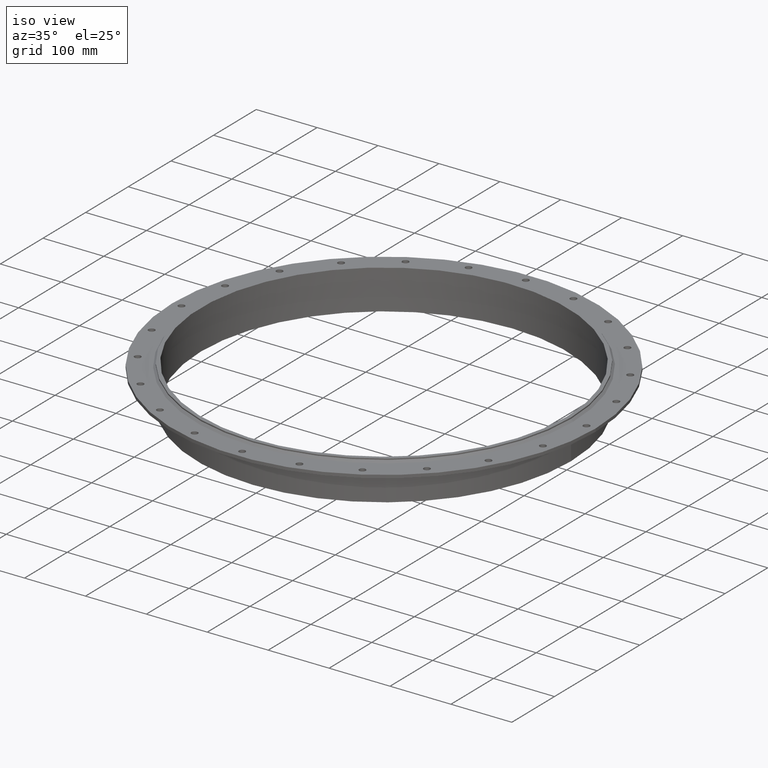
[diagram: clean part render]
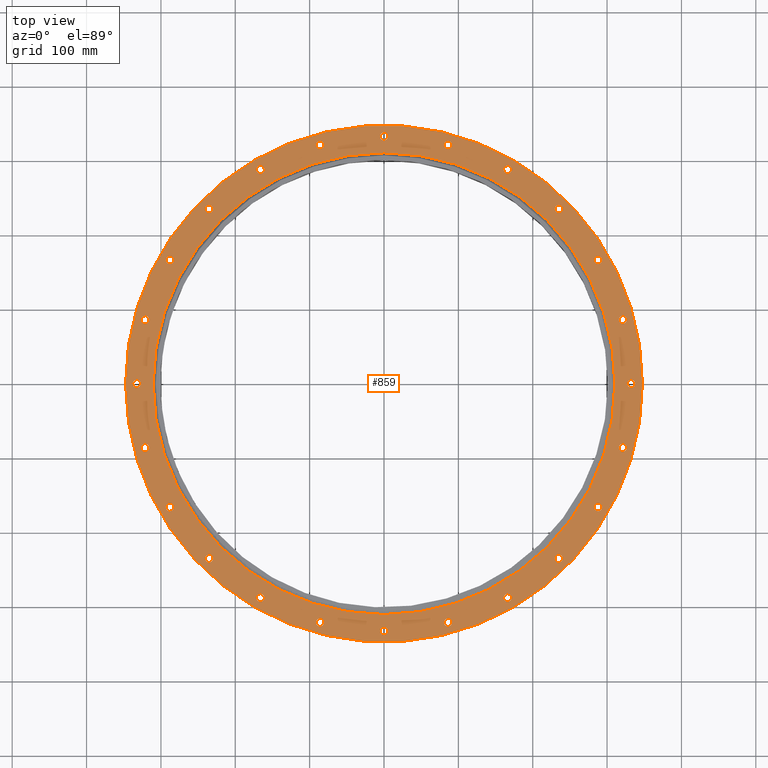
[diagram: tour spotlight — one face highlighted and labeled with its STEP entity id]
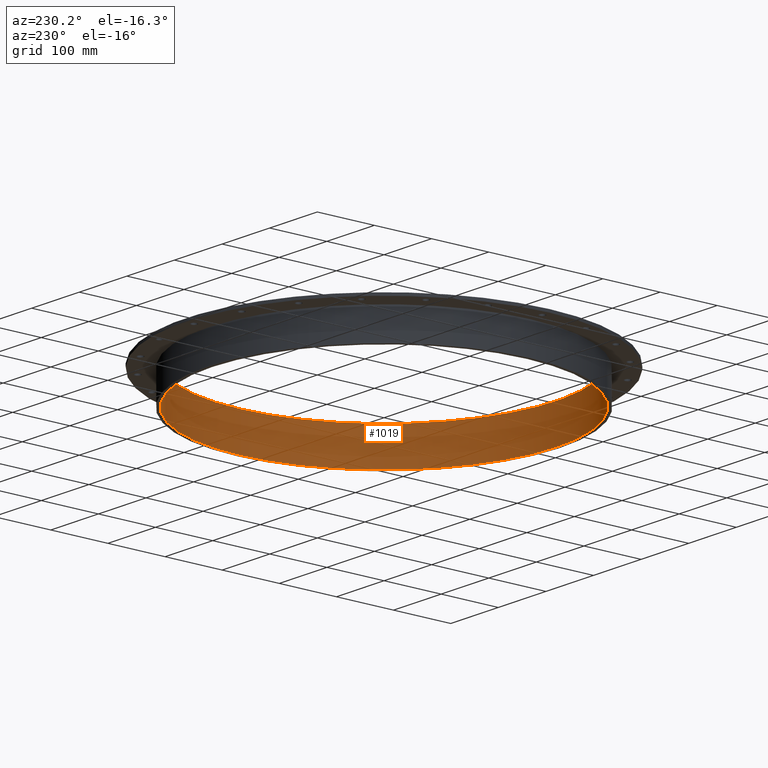
[diagram: tour spotlight — one face highlighted and labeled with its STEP entity id]
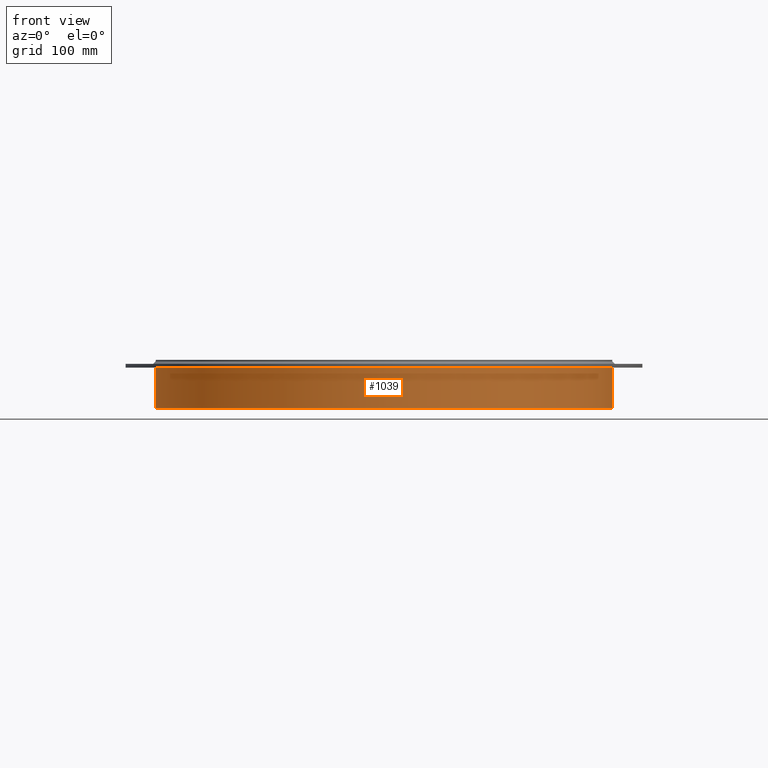
[diagram: tour spotlight — one face highlighted and labeled with its STEP entity id]
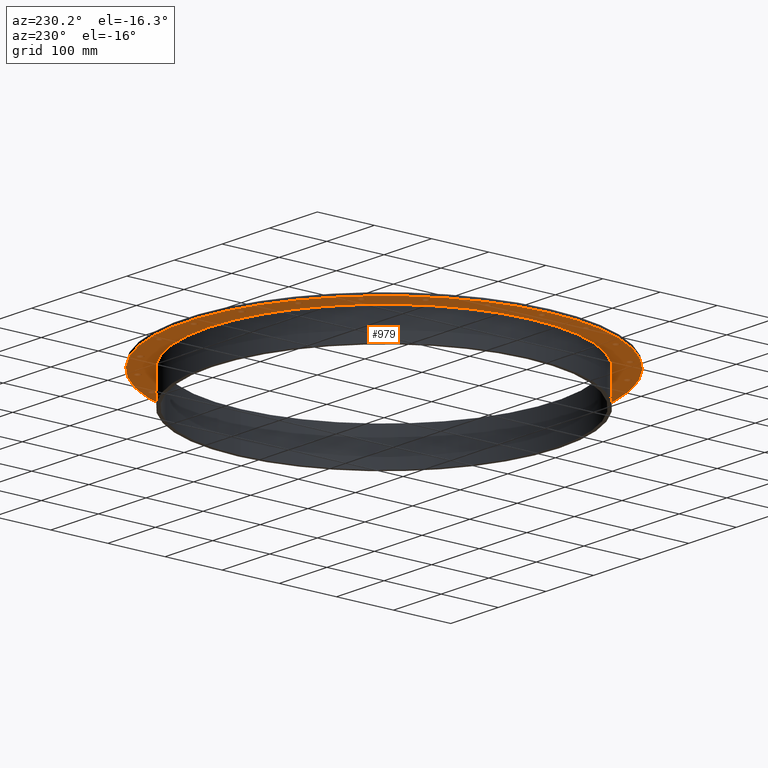
[diagram: tour spotlight — one face highlighted and labeled with its STEP entity id]
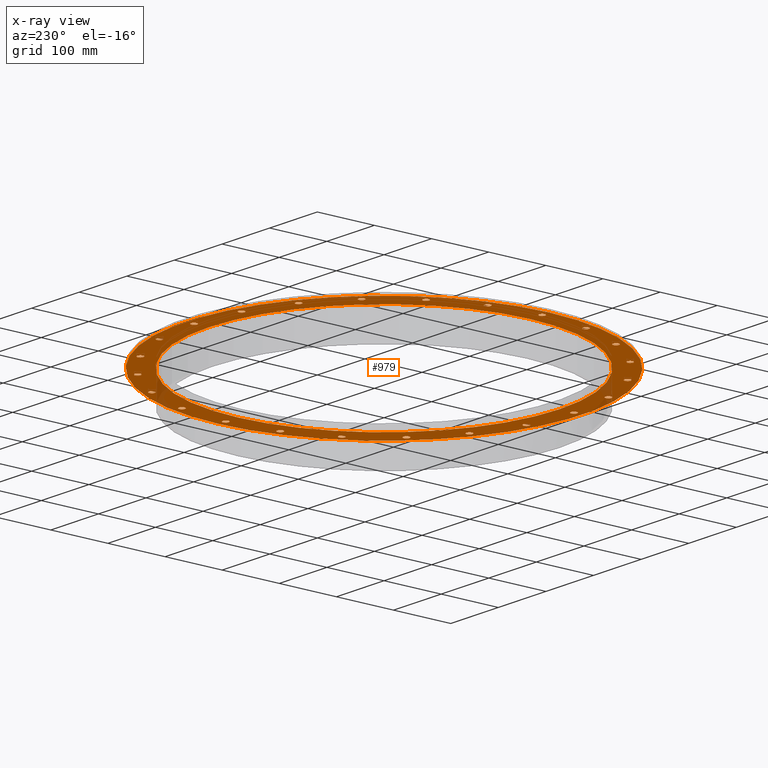
[diagram: x-ray of the same camera — body ghosted, this tour face saturated]
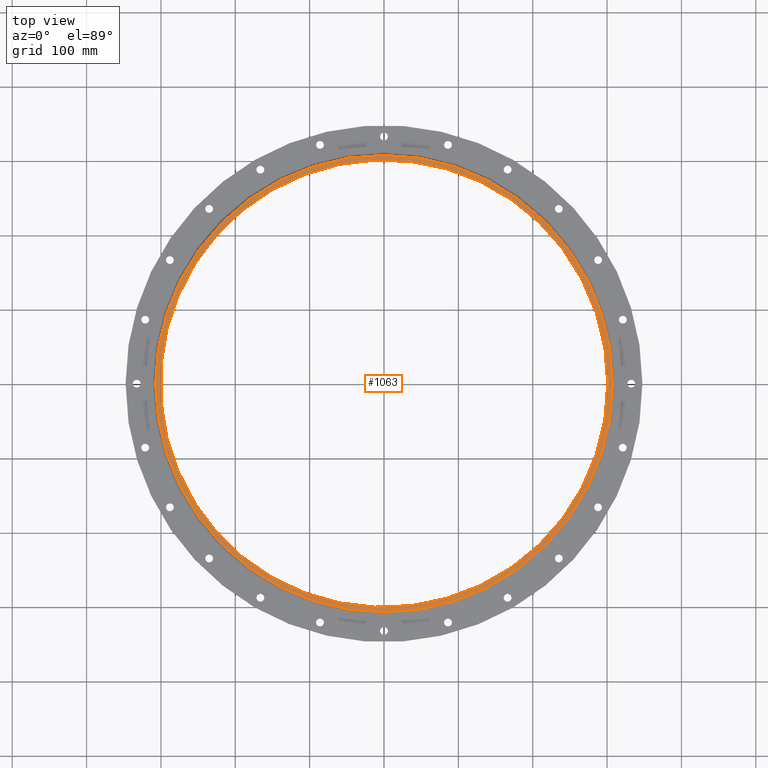
[diagram: tour spotlight — one face highlighted and labeled with its STEP entity id]
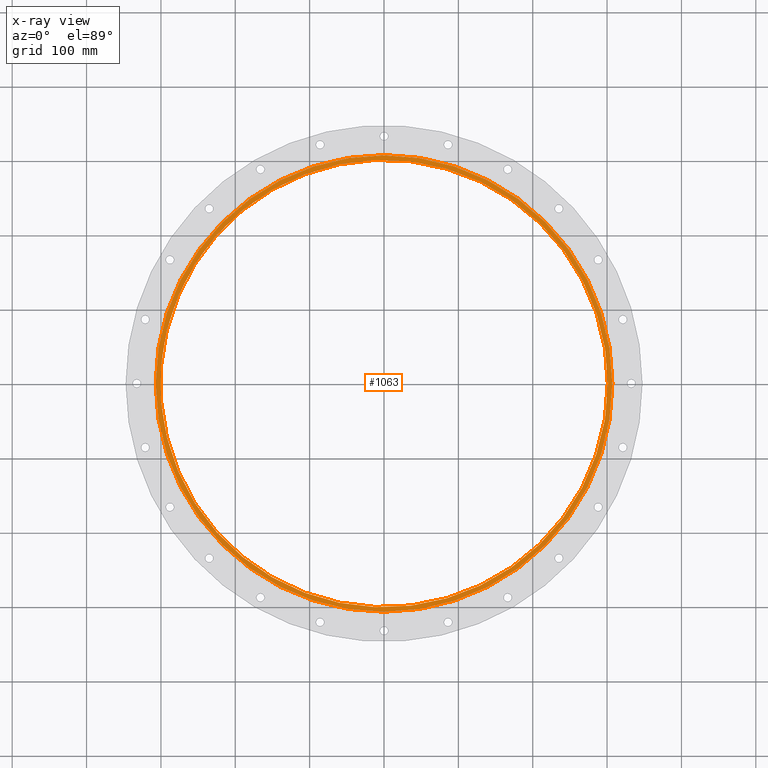
[diagram: x-ray of the same camera — body ghosted, this tour face saturated]
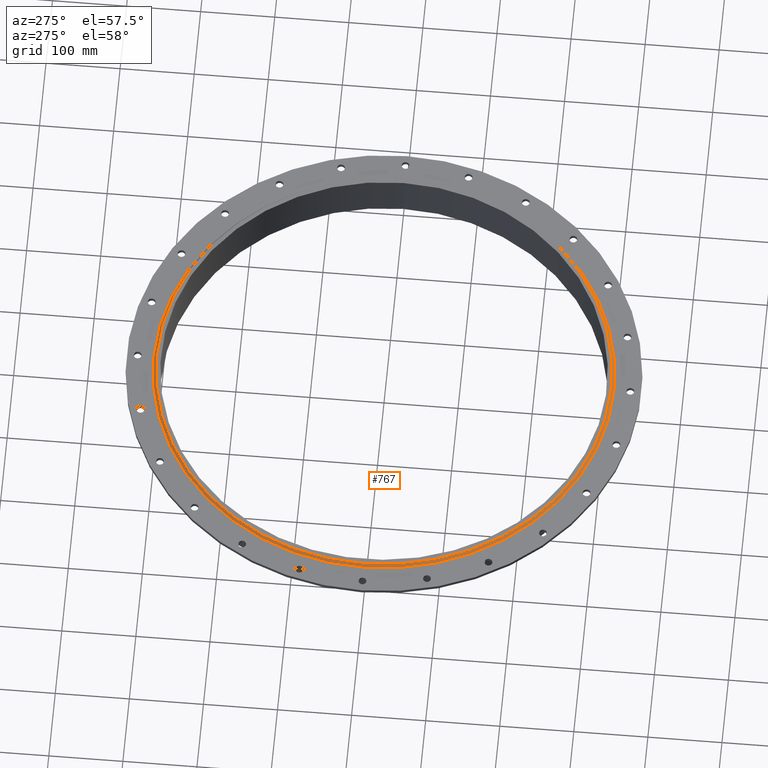
[diagram: tour spotlight — one face highlighted and labeled with its STEP entity id]
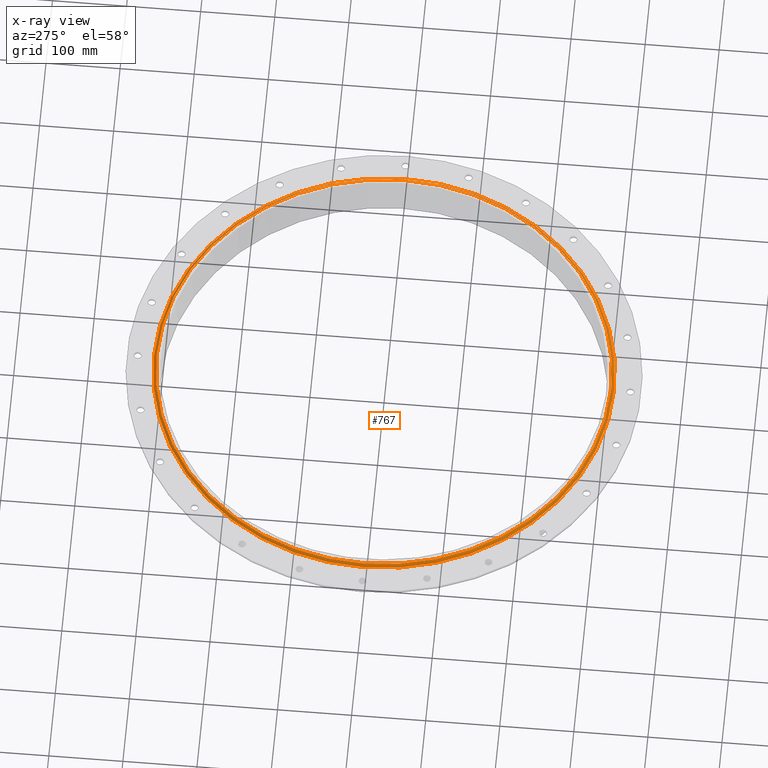
[diagram: x-ray of the same camera — body ghosted, this tour face saturated]
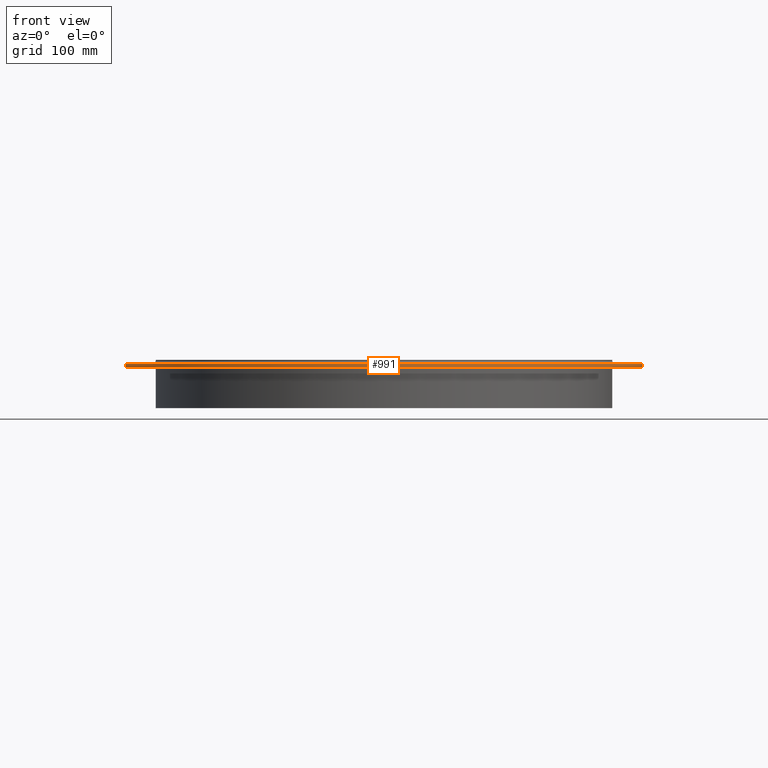
[diagram: tour spotlight — one face highlighted and labeled with its STEP entity id]
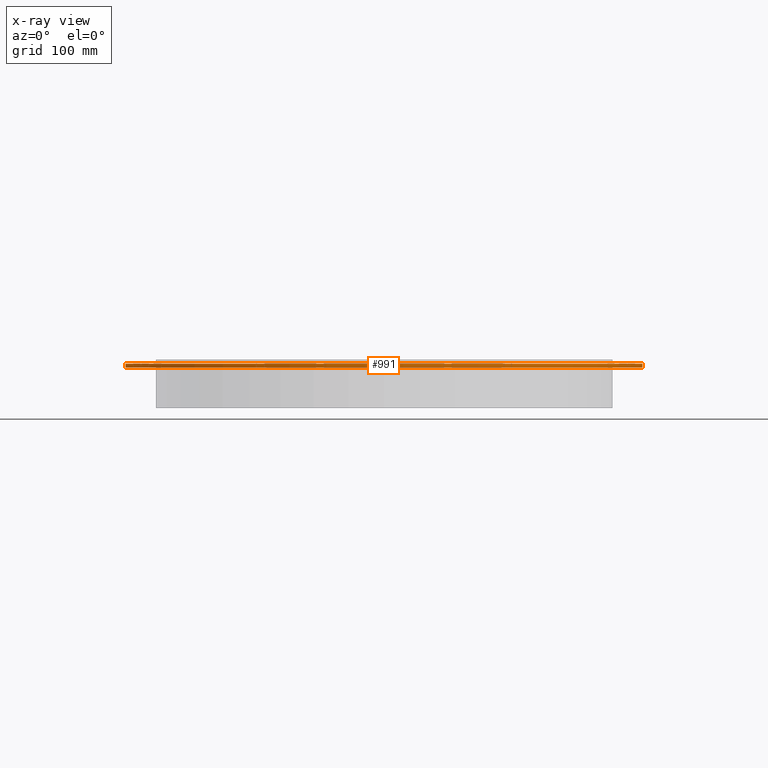
[diagram: x-ray of the same camera — body ghosted, this tour face saturated]
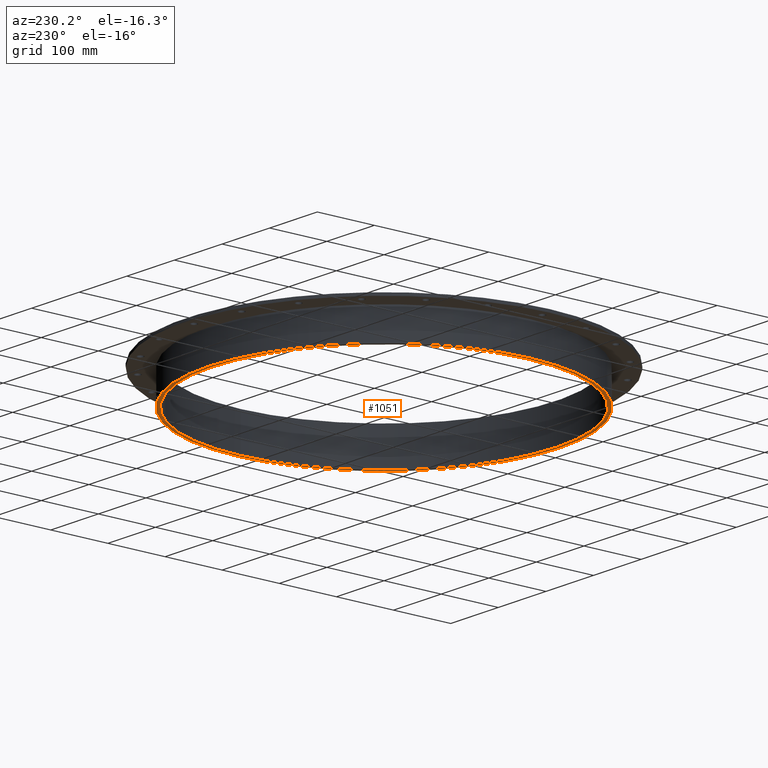
[diagram: tour spotlight — one face highlighted and labeled with its STEP entity id]
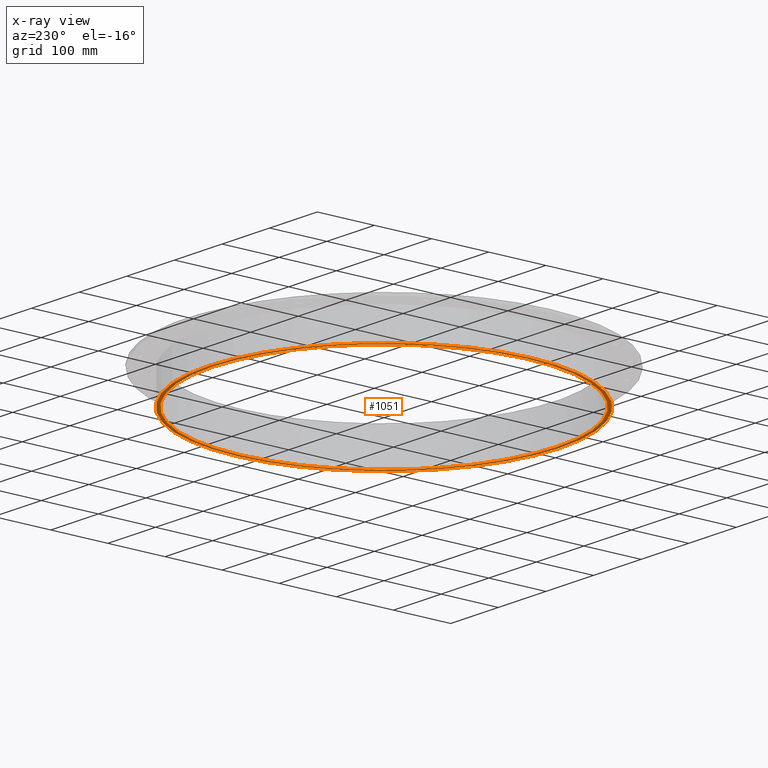
[diagram: x-ray of the same camera — body ghosted, this tour face saturated]
A machine part: a face-by-face anatomy tour. The part has 33 B-rep faces; the first image is the clean iso view, then the 8 largest visible faces are spotlighted one at a time (largest first), each with its STEP entity span.

Face 1 — top view, entity #859. In plain terms, the highlighted planar face has unit normal (0, 0, 1).
Definition (entity closure, byte-faithful):
#84=CARTESIAN_POINT('',(-161.0,287.95344675832587,-5.499999999999998));
#85=VERTEX_POINT('',#84);
#86=CARTESIAN_POINT('',(-166.25,287.95344675832587,-5.499999999999972));
#87=DIRECTION('',(0.0,0.0,-1.0));
#88=DIRECTION('',(1.0,0.0,0.0));
#89=AXIS2_PLACEMENT_3D('',#86,#87,#88);
#90=CIRCLE('',#89,5.25);
#91=EDGE_CURVE('',#85,#85,#90,.T.);
#112=CARTESIAN_POINT('',(-282.70344675832587,166.25000000000006,-5.499999999999998));
#113=VERTEX_POINT('',#112);
#114=CARTESIAN_POINT('',(-287.95344675832587,166.25000000000006,-5.499999999999972));
#115=DIRECTION('',(0.0,0.0,-1.0));
#116=DIRECTION('',(1.0,0.0,0.0));
#117=AXIS2_PLACEMENT_3D('',#114,#115,#116);
#118=CIRCLE('',#117,5.25);
#119=EDGE_CURVE('',#113,#113,#118,.T.);
#140=CARTESIAN_POINT('',(-327.25,1.776357E-014,-5.499999999999998));
#141=VERTEX_POINT('',#140);
#142=CARTESIAN_POINT('',(-332.5,1.776357E-014,-5.499999999999972));
#143=DIRECTION('',(0.0,0.0,-1.0));
#144=DIRECTION('',(1.0,0.0,0.0));
#145=AXIS2_PLACEMENT_3D('',#142,#143,#144);
#146=CIRCLE('',#145,5.25);
#147=EDGE_CURVE('',#141,#141,#146,.T.);
#168=CARTESIAN_POINT('',(-282.70344675832587,-166.24999999999997,-5.499999999999998));
#169=VERTEX_POINT('',#168);
#170=CARTESIAN_POINT('',(-287.95344675832587,-166.24999999999997,-5.499999999999972));
#171=DIRECTION('',(0.0,0.0,-1.0));
#172=DIRECTION('',(1.0,0.0,0.0));
#173=AXIS2_PLACEMENT_3D('',#170,#171,#172);
#174=CIRCLE('',#173,5.25);
#175=EDGE_CURVE('',#169,#169,#174,.T.);
#196=CARTESIAN_POINT('',(-161.00000000000011,-287.95344675832575,-5.499999999999998));
#197=VERTEX_POINT('',#196);
#198=CARTESIAN_POINT('',(-166.25000000000011,-287.95344675832575,-5.499999999999972));
#199=DIRECTION('',(0.0,0.0,-1.0));
#200=DIRECTION('',(1.0,0.0,0.0));
#201=AXIS2_PLACEMENT_3D('',#198,#199,#200);
#202=CIRCLE('',#201,5.25);
#203=EDGE_CURVE('',#197,#197,#202,.T.);
#224=CARTESIAN_POINT('',(5.249999999999965,-332.5,-5.499999999999998));
#225=VERTEX_POINT('',#224);
#226=CARTESIAN_POINT('',(-3.552714E-014,-332.5,-5.499999999999972));
#227=DIRECTION('',(0.0,0.0,-1.0));
#228=DIRECTION('',(1.0,0.0,0.0));
#229=AXIS2_PLACEMENT_3D('',#226,#227,#228);
#230=CIRCLE('',#229,5.25);
#231=EDGE_CURVE('',#225,#225,#230,.T.);
#252=CARTESIAN_POINT('',(171.49999999999989,-287.95344675832587,-5.499999999999998));
#253=VERTEX_POINT('',#252);
#254=CARTESIAN_POINT('',(166.24999999999989,-287.95344675832587,-5.499999999999972));
#255=DIRECTION('',(0.0,0.0,-1.0));
#256=DIRECTION('',(1.0,0.0,0.0));
#257=AXIS2_PLACEMENT_3D('',#254,#255,#256);
#258=CIRCLE('',#257,5.25);
#259=EDGE_CURVE('',#253,#253,#258,.T.);
#280=CARTESIAN_POINT('',(293.20344675832575,-166.25000000000014,-5.499999999999998));
#281=VERTEX_POINT('',#280);
#282=CARTESIAN_POINT('',(287.95344675832575,-166.25000000000014,-5.499999999999972));
#283=DIRECTION('',(0.0,0.0,-1.0));
#284=DIRECTION('',(1.0,0.0,0.0));
#285=AXIS2_PLACEMENT_3D('',#282,#283,#284);
#286=CIRCLE('',#285,5.25);
#287=EDGE_CURVE('',#281,#281,#286,.T.);
#308=CARTESIAN_POINT('',(337.75,-5.329071E-014,-5.499999999999998));
#309=VERTEX_POINT('',#308);
#310=CARTESIAN_POINT('',(332.5,-5.329071E-014,-5.499999999999972));
#311=DIRECTION('',(0.0,0.0,-1.0));
#312=DIRECTION('',(1.0,0.0,0.0));
#313=AXIS2_PLACEMENT_3D('',#310,#311,#312);
#314=CIRCLE('',#313,5.25);
#315=EDGE_CURVE('',#309,#309,#314,.T.);
#336=CARTESIAN_POINT('',(293.20344675832604,166.24999999999974,-5.499999999999998));
#337=VERTEX_POINT('',#336);
#338=CARTESIAN_POINT('',(287.95344675832604,166.24999999999974,-5.499999999999972));
#339=DIRECTION('',(0.0,0.0,-1.0));
#340=DIRECTION('',(1.0,0.0,0.0));
#341=AXIS2_PLACEMENT_3D('',#338,#339,#340);
#342=CIRCLE('',#341,5.25);
#343=EDGE_CURVE('',#337,#337,#342,.T.);
#364=CARTESIAN_POINT('',(171.50000000000011,287.95344675832575,-5.499999999999998));
#365=VERTEX_POINT('',#364);
#366=CARTESIAN_POINT('',(166.25000000000014,287.95344675832575,-5.499999999999972));
#367=DIRECTION('',(0.0,0.0,-1.0));
#368=DIRECTION('',(1.0,0.0,0.0));
#369=AXIS2_PLACEMENT_3D('',#366,#367,#368);
#370=CIRCLE('',#369,5.25);
#371=EDGE_CURVE('',#365,#365,#370,.T.);
#392=CARTESIAN_POINT('',(5.25,332.5,-5.499999999999998));
#393=VERTEX_POINT('',#392);
#394=CARTESIAN_POINT('',(0.0,332.5,-5.499999999999972));
#395=DIRECTION('',(0.0,0.0,-1.0));
#396=DIRECTION('',(1.0,0.0,0.0));
#397=AXIS2_PLACEMENT_3D('',#394,#395,#396);
#398=CIRCLE('',#397,5.25);
#399=EDGE_CURVE('',#393,#393,#398,.T.);
#420=CARTESIAN_POINT('',(91.307332496588387,321.17033724111513,-5.499999999999998));
#421=VERTEX_POINT('',#420);
#422=CARTESIAN_POINT('',(86.057332496588387,321.17033724111513,-5.499999999999972));
#423=DIRECTION('',(0.0,0.0,-1.0));
#424=DIRECTION('',(1.0,0.0,0.0));
#425=AXIS2_PLACEMENT_3D('',#422,#423,#424);
#426=CIRCLE('',#425,5.25);
#427=EDGE_CURVE('',#421,#421,#426,.T.);
#448=CARTESIAN_POINT('',(240.36300474452719,235.11300474452702,-5.499999999999998));
#449=VERTEX_POINT('',#448);
#450=CARTESIAN_POINT('',(235.11300474452722,235.11300474452702,-5.499999999999972));
#451=DIRECTION('',(0.0,0.0,-1.0));
#452=DIRECTION('',(1.0,0.0,0.0));
#453=AXIS2_PLACEMENT_3D('',#450,#451,#452);
#454=CIRCLE('',#453,5.25);
#455=EDGE_CURVE('',#449,#449,#454,.T.);
#476=CARTESIAN_POINT('',(326.42033724111525,86.057332496588003,-5.499999999999998));
#477=VERTEX_POINT('',#476);
#478=CARTESIAN_POINT('',(321.17033724111531,86.057332496588003,-5.499999999999972));
#479=DIRECTION('',(0.0,0.0,-1.0));
#480=DIRECTION('',(1.0,0.0,0.0));
#481=AXIS2_PLACEMENT_3D('',#478,#479,#480);
#482=CIRCLE('',#481,5.25);
#483=EDGE_CURVE('',#477,#477,#482,.T.);
#504=CARTESIAN_POINT('',(326.42033724111525,-86.057332496588387,-5.499999999999998));
#505=VERTEX_POINT('',#504);
#506=CARTESIAN_POINT('',(321.17033724111531,-86.057332496588387,-5.499999999999972));
#507=DIRECTION('',(0.0,0.0,-1.0));
#508=DIRECTION('',(1.0,0.0,0.0));
#509=AXIS2_PLACEMENT_3D('',#506,#507,#508);
#510=CIRCLE('',#509,5.25);
#511=EDGE_CURVE('',#505,#505,#510,.T.);
#532=CARTESIAN_POINT('',(240.3630047445269,-235.11300474452722,-5.499999999999998));
#533=VERTEX_POINT('',#532);
#534=CARTESIAN_POINT('',(235.11300474452693,-235.11300474452722,-5.499999999999972));
#535=DIRECTION('',(0.0,0.0,-1.0));
#536=DIRECTION('',(1.0,0.0,0.0));
#537=AXIS2_PLACEMENT_3D('',#534,#535,#536);
#538=CIRCLE('',#537,5.25);
#539=EDGE_CURVE('',#533,#533,#538,.T.);
#560=CARTESIAN_POINT('',(91.307332496588032,-321.17033724111531,-5.499999999999998));
#561=VERTEX_POINT('',#560);
#562=CARTESIAN_POINT('',(86.057332496588032,-321.17033724111531,-5.499999999999972));
#563=DIRECTION('',(0.0,0.0,-1.0));
#564=DIRECTION('',(1.0,0.0,0.0));
#565=AXIS2_PLACEMENT_3D('',#562,#563,#564);
#566=CIRCLE('',#565,5.25);
#567=EDGE_CURVE('',#561,#561,#566,.T.);
#588=CARTESIAN_POINT('',(-80.807332496588231,-321.17033724111531,-5.499999999999998));
#589=VERTEX_POINT('',#588);
#590=CARTESIAN_POINT('',(-86.057332496588245,-321.17033724111531,-5.499999999999972));
#591=DIRECTION('',(0.0,0.0,-1.0));
#592=DIRECTION('',(1.0,0.0,0.0));
#593=AXIS2_PLACEMENT_3D('',#590,#591,#592);
#594=CIRCLE('',#593,5.25);
#595=EDGE_CURVE('',#589,#589,#594,.T.);
#616=CARTESIAN_POINT('',(-229.86300474452713,-235.11300474452707,-5.499999999999998));
#617=VERTEX_POINT('',#616);
#618=CARTESIAN_POINT('',(-235.1130047445271,-235.11300474452707,-5.499999999999972));
#619=DIRECTION('',(0.0,0.0,-1.0));
#620=DIRECTION('',(1.0,0.0,0.0));
#621=AXIS2_PLACEMENT_3D('',#618,#619,#620);
#622=CIRCLE('',#621,5.25);
#623=EDGE_CURVE('',#617,#617,#622,.T.);
#644=CARTESIAN_POINT('',(-315.92033724111531,-86.057332496588117,-5.499999999999998));
#645=VERTEX_POINT('',#644);
#646=CARTESIAN_POINT('',(-321.17033724111531,-86.057332496588117,-5.499999999999972));
#647=DIRECTION('',(0.0,0.0,-1.0));
#648=DIRECTION('',(1.0,0.0,0.0));
#649=AXIS2_PLACEMENT_3D('',#646,#647,#648);
#650=CIRCLE('',#649,5.25);
#651=EDGE_CURVE('',#645,#645,#650,.T.);
#672=CARTESIAN_POINT('',(-315.92033724111531,86.057332496588245,-5.499999999999998));
#673=VERTEX_POINT('',#672);
#674=CARTESIAN_POINT('',(-321.17033724111531,86.057332496588245,-5.499999999999972));
#675=DIRECTION('',(0.0,0.0,-1.0));
#676=DIRECTION('',(1.0,0.0,0.0));
#677=AXIS2_PLACEMENT_3D('',#674,#675,#676);
#678=CIRCLE('',#677,5.25);
#679=EDGE_CURVE('',#673,#673,#678,.T.);
#700=CARTESIAN_POINT('',(-229.86300474452707,235.1130047445271,-5.499999999999998));
#701=VERTEX_POINT('',#700);
#702=CARTESIAN_POINT('',(-235.11300474452707,235.1130047445271,-5.499999999999972));
#703=DIRECTION('',(0.0,0.0,-1.0));
#704=DIRECTION('',(1.0,0.0,0.0));
#705=AXIS2_PLACEMENT_3D('',#702,#703,#704);
#706=CIRCLE('',#705,5.25);
#707=EDGE_CURVE('',#701,#701,#706,.T.);
#728=CARTESIAN_POINT('',(-80.807332496588145,321.17033724111531,-5.499999999999998));
#729=VERTEX_POINT('',#728);
#730=CARTESIAN_POINT('',(-86.057332496588145,321.17033724111531,-5.499999999999972));
#731=DIRECTION('',(0.0,0.0,-1.0));
#732=DIRECTION('',(1.0,0.0,0.0));
#733=AXIS2_PLACEMENT_3D('',#730,#731,#732);
#734=CIRCLE('',#733,5.25);
#735=EDGE_CURVE('',#729,#729,#734,.T.);
#745=CARTESIAN_POINT('',(310.50000000000011,3.802528E-014,-5.499999999999998));
#746=VERTEX_POINT('',#745);
#747=CARTESIAN_POINT('',(0.0,0.0,-5.499999999999998));
#748=DIRECTION('',(0.0,0.0,1.0));
#749=DIRECTION('',(-1.0,0.0,0.0));
#750=AXIS2_PLACEMENT_3D('',#747,#748,#749);
#751=CIRCLE('',#750,310.50000000000011);
#752=EDGE_CURVE('',#746,#746,#751,.T.);
#768=CARTESIAN_POINT('',(-1.445159E-014,-5.452606E-015,-5.499999999999998));
#769=DIRECTION('',(0.0,0.0,1.0));
#770=DIRECTION('',(1.0,0.0,0.0));
#771=AXIS2_PLACEMENT_3D('',#768,#769,#770);
#772=PLANE('',#771);
#773=CARTESIAN_POINT('',(347.5,4.255648E-014,-5.5));
#774=VERTEX_POINT('',#773);
#775=CARTESIAN_POINT('',(0.0,0.0,-5.5));
#776=DIRECTION('',(0.0,0.0,1.0));
#777=DIRECTION('',(-1.0,0.0,0.0));
#778=AXIS2_PLACEMENT_3D('',#775,#776,#777);
#779=CIRCLE('',#778,347.5);
#780=EDGE_CURVE('',#774,#774,#779,.T.);
#781=ORIENTED_EDGE('',*,*,#780,.T.);
#782=EDGE_LOOP('',(#781));
#783=FACE_OUTER_BOUND('',#782,.T.);
#784=ORIENTED_EDGE('',*,*,#91,.T.);
#785=EDGE_LOOP('',(#784));
#786=FACE_BOUND('',#785,.T.);
#787=ORIENTED_EDGE('',*,*,#119,.T.);
#788=EDGE_LOOP('',(#787));
#789=FACE_BOUND('',#788,.T.);
#790=ORIENTED_EDGE('',*,*,#147,.T.);
#791=EDGE_LOOP('',(#790));
#792=FACE_BOUND('',#791,.T.);
#793=ORIENTED_EDGE('',*,*,#175,.T.);
#794=EDGE_LOOP('',(#793));
#795=FACE_BOUND('',#794,.T.);
#796=ORIENTED_EDGE('',*,*,#203,.T.);
#797=EDGE_LOOP('',(#796));
#798=FACE_BOUND('',#797,.T.);
#799=ORIENTED_EDGE('',*,*,#231,.T.);
#800=EDGE_LOOP('',(#799));
#801=FACE_BOUND('',#800,.T.);
#802=ORIENTED_EDGE('',*,*,#259,.T.);
#803=EDGE_LOOP('',(#802));
#804=FACE_BOUND('',#803,.T.);
#805=ORIENTED_EDGE('',*,*,#287,.T.);
#806=EDGE_LOOP('',(#805));
#807=FACE_BOUND('',#806,.T.);
#808=ORIENTED_EDGE('',*,*,#315,.T.);
#809=EDGE_LOOP('',(#808));
#810=FACE_BOUND('',#809,.T.);
#811=ORIENTED_EDGE('',*,*,#343,.T.);
#812=EDGE_LOOP('',(#811));
#813=FACE_BOUND('',#812,.T.);
#814=ORIENTED_EDGE('',*,*,#371,.T.);
#815=EDGE_LOOP('',(#814));
#816=FACE_BOUND('',#815,.T.);
#817=ORIENTED_EDGE('',*,*,#399,.T.);
#818=EDGE_LOOP('',(#817));
#819=FACE_BOUND('',#818,.T.);
#820=ORIENTED_EDGE('',*,*,#427,.T.);
#821=EDGE_LOOP('',(#820));
#822=FACE_BOUND('',#821,.T.);
#823=ORIENTED_EDGE('',*,*,#455,.T.);
#824=EDGE_LOOP('',(#823));
#825=FACE_BOUND('',#824,.T.);
#826=ORIENTED_EDGE('',*,*,#483,.T.);
#827=EDGE_LOOP('',(#826));
#828=FACE_BOUND('',#827,.T.);
#829=ORIENTED_EDGE('',*,*,#511,.T.);
#830=EDGE_LOOP('',(#829));
#831=FACE_BOUND('',#830,.T.);
#832=ORIENTED_EDGE('',*,*,#539,.T.);
#833=EDGE_LOOP('',(#832));
#834=FACE_BOUND('',#833,.T.);
#835=ORIENTED_EDGE('',*,*,#567,.T.);
#836=EDGE_LOOP('',(#835));
#837=FACE_BOUND('',#836,.T.);
#838=ORIENTED_EDGE('',*,*,#595,.T.);
#839=EDGE_LOOP('',(#838));
#840=FACE_BOUND('',#839,.T.);
#841=ORIENTED_EDGE('',*,*,#623,.T.);
#842=EDGE_LOOP('',(#841));
#843=FACE_BOUND('',#842,.T.);
#844=ORIENTED_EDGE('',*,*,#651,.T.);
#845=EDGE_LOOP('',(#844));
#846=FACE_BOUND('',#845,.T.);
#847=ORIENTED_EDGE('',*,*,#679,.T.);
#848=EDGE_LOOP('',(#847));
#849=FACE_BOUND('',#848,.T.);
#850=ORIENTED_EDGE('',*,*,#707,.T.);
#851=EDGE_LOOP('',(#850));
#852=FACE_BOUND('',#851,.T.);
#853=ORIENTED_EDGE('',*,*,#735,.T.);
#854=EDGE_LOOP('',(#853));
#855=FACE_BOUND('',#854,.T.);
#856=ORIENTED_EDGE('',*,*,#752,.F.);
#857=EDGE_LOOP('',(#856));
#858=FACE_BOUND('',#857,.T.);
#859=ADVANCED_FACE('',(#783,#786,#789,#792,#795,#798,#801,#804,#807,#810,#813,#816,#819,#822,#825,#828,#831,#834,#837,#840,#843,#846,#849,#852,#855,#858),#772,.T.);

Face 2 — auxiliary view, entity #1019. In plain terms, the highlighted cylindrical surface (bore or boss wall) has radius 301 mm, axis along (0, 0, 1).
Definition (entity closure, byte-faithful):
#992=CARTESIAN_POINT('',(0.0,0.0,-870.75656758935793));
#993=DIRECTION('',(0.0,0.0,1.0));
#994=DIRECTION('',(1.0,0.0,0.0));
#995=AXIS2_PLACEMENT_3D('',#992,#993,#994);
#996=CYLINDRICAL_SURFACE('',#995,301.0);
#997=CARTESIAN_POINT('',(-301.0,-3.686187E-014,-65.0));
#998=VERTEX_POINT('',#997);
#999=CARTESIAN_POINT('',(0.0,0.0,-65.0));
#1000=DIRECTION('',(0.0,0.0,1.0));
#1001=DIRECTION('',(1.0,0.0,0.0));
#1002=AXIS2_PLACEMENT_3D('',#999,#1000,#1001);
#1003=CIRCLE('',#1002,301.0);
#1004=EDGE_CURVE('',#998,#998,#1003,.T.);
#1005=ORIENTED_EDGE('',*,*,#1004,.F.);
#1006=EDGE_LOOP('',(#1005));
#1007=FACE_OUTER_BOUND('',#1006,.T.);
#1008=CARTESIAN_POINT('',(301.0,0.0,0.0));
#1009=VERTEX_POINT('',#1008);
#1010=CARTESIAN_POINT('',(0.0,0.0,0.0));
#1011=DIRECTION('',(0.0,0.0,-1.0));
#1012=DIRECTION('',(1.0,0.0,0.0));
#1013=AXIS2_PLACEMENT_3D('',#1010,#1011,#1012);
#1014=CIRCLE('',#1013,301.0);
#1015=EDGE_CURVE('',#1009,#1009,#1014,.T.);
#1016=ORIENTED_EDGE('',*,*,#1015,.F.);
#1017=EDGE_LOOP('',(#1016));
#1018=FACE_BOUND('',#1017,.T.);
#1019=ADVANCED_FACE('',(#1007,#1018),#996,.F.);

Face 3 — front view, entity #1039. In plain terms, the highlighted cylindrical surface (bore or boss wall) has radius 307 mm, axis along (0, 0, -1).
Definition (entity closure, byte-faithful):
#968=CARTESIAN_POINT('',(307.0,3.759666E-014,-10.5));
#969=VERTEX_POINT('',#968);
#970=CARTESIAN_POINT('',(0.0,0.0,-10.499999999999996));
#971=DIRECTION('',(0.0,0.0,-1.0));
#972=DIRECTION('',(-1.0,0.0,0.0));
#973=AXIS2_PLACEMENT_3D('',#970,#971,#972);
#974=CIRCLE('',#973,307.0);
#975=EDGE_CURVE('',#969,#969,#974,.T.);
#1020=CARTESIAN_POINT('',(0.0,0.0,0.0));
#1021=DIRECTION('',(0.0,0.0,-1.0));
#1022=DIRECTION('',(-1.0,0.0,0.0));
#1023=AXIS2_PLACEMENT_3D('',#1020,#1021,#1022);
#1024=CYLINDRICAL_SURFACE('',#1023,307.0);
#1025=ORIENTED_EDGE('',*,*,#975,.T.);
#1026=EDGE_LOOP('',(#1025));
#1027=FACE_OUTER_BOUND('',#1026,.T.);
#1028=CARTESIAN_POINT('',(307.0,3.759666E-014,-65.0));
#1029=VERTEX_POINT('',#1028);
#1030=CARTESIAN_POINT('',(0.0,0.0,-65.0));
#1031=DIRECTION('',(0.0,0.0,-1.0));
#1032=DIRECTION('',(-1.0,0.0,0.0));
#1033=AXIS2_PLACEMENT_3D('',#1030,#1031,#1032);
#1034=CIRCLE('',#1033,307.0);
#1035=EDGE_CURVE('',#1029,#1029,#1034,.T.);
#1036=ORIENTED_EDGE('',*,*,#1035,.F.);
#1037=EDGE_LOOP('',(#1036));
#1038=FACE_BOUND('',#1037,.T.);
#1039=ADVANCED_FACE('',(#1027,#1038),#1024,.T.);

Face 4 — auxiliary view, entity #979. An x-ray twin of the same camera follows (body ghosted, this face saturated) — the face is partly hidden behind the body. In plain terms, the highlighted planar face has unit normal (0, 0, 1).
Definition (entity closure, byte-faithful):
#73=CARTESIAN_POINT('',(-171.5,287.95344675832587,-10.499999999999972));
#74=VERTEX_POINT('',#73);
#75=CARTESIAN_POINT('',(-166.25,287.95344675832587,-10.499999999999972));
#76=DIRECTION('',(0.0,0.0,1.0));
#77=DIRECTION('',(1.0,0.0,0.0));
#78=AXIS2_PLACEMENT_3D('',#75,#76,#77);
#79=CIRCLE('',#78,5.25);
#80=EDGE_CURVE('',#74,#74,#79,.T.);
#101=CARTESIAN_POINT('',(-293.20344675832587,166.25000000000006,-10.499999999999972));
#102=VERTEX_POINT('',#101);
#103=CARTESIAN_POINT('',(-287.95344675832587,166.25000000000006,-10.499999999999972));
#104=DIRECTION('',(0.0,0.0,1.0));
#105=DIRECTION('',(1.0,0.0,0.0));
#106=AXIS2_PLACEMENT_3D('',#103,#104,#105);
#107=CIRCLE('',#106,5.25);
#108=EDGE_CURVE('',#102,#102,#107,.T.);
#129=CARTESIAN_POINT('',(-337.75,1.712063E-014,-10.499999999999972));
#130=VERTEX_POINT('',#129);
#131=CARTESIAN_POINT('',(-332.5,1.776357E-014,-10.499999999999972));
#132=DIRECTION('',(0.0,0.0,1.0));
#133=DIRECTION('',(1.0,0.0,0.0));
#134=AXIS2_PLACEMENT_3D('',#131,#132,#133);
#135=CIRCLE('',#134,5.25);
#136=EDGE_CURVE('',#130,#130,#135,.T.);
#157=CARTESIAN_POINT('',(-293.20344675832587,-166.24999999999997,-10.499999999999972));
#158=VERTEX_POINT('',#157);
#159=CARTESIAN_POINT('',(-287.95344675832587,-166.24999999999997,-10.499999999999972));
#160=DIRECTION('',(0.0,0.0,1.0));
#161=DIRECTION('',(1.0,0.0,0.0));
#162=AXIS2_PLACEMENT_3D('',#159,#160,#161);
#163=CIRCLE('',#162,5.25);
#164=EDGE_CURVE('',#158,#158,#163,.T.);
#185=CARTESIAN_POINT('',(-171.50000000000009,-287.95344675832575,-10.499999999999972));
#186=VERTEX_POINT('',#185);
#187=CARTESIAN_POINT('',(-166.25000000000011,-287.95344675832575,-10.499999999999972));
#188=DIRECTION('',(0.0,0.0,1.0));
#189=DIRECTION('',(1.0,0.0,0.0));
#190=AXIS2_PLACEMENT_3D('',#187,#188,#189);
#191=CIRCLE('',#190,5.25);
#192=EDGE_CURVE('',#186,#186,#191,.T.);
#213=CARTESIAN_POINT('',(-5.250000000000036,-332.5,-10.499999999999972));
#214=VERTEX_POINT('',#213);
#215=CARTESIAN_POINT('',(-3.552714E-014,-332.5,-10.499999999999972));
#216=DIRECTION('',(0.0,0.0,1.0));
#217=DIRECTION('',(1.0,0.0,0.0));
#218=AXIS2_PLACEMENT_3D('',#215,#216,#217);
#219=CIRCLE('',#218,5.25);
#220=EDGE_CURVE('',#214,#214,#219,.T.);
#241=CARTESIAN_POINT('',(160.99999999999991,-287.95344675832587,-10.499999999999972));
#242=VERTEX_POINT('',#241);
#243=CARTESIAN_POINT('',(166.24999999999989,-287.95344675832587,-10.499999999999972));
#244=DIRECTION('',(0.0,0.0,1.0));
#245=DIRECTION('',(1.0,0.0,0.0));
#246=AXIS2_PLACEMENT_3D('',#243,#244,#245);
#247=CIRCLE('',#246,5.25);
#248=EDGE_CURVE('',#242,#242,#247,.T.);
#269=CARTESIAN_POINT('',(282.70344675832581,-166.25000000000014,-10.499999999999972));
#270=VERTEX_POINT('',#269);
#271=CARTESIAN_POINT('',(287.95344675832575,-166.25000000000014,-10.499999999999972));
#272=DIRECTION('',(0.0,0.0,1.0));
#273=DIRECTION('',(1.0,0.0,0.0));
#274=AXIS2_PLACEMENT_3D('',#271,#272,#273);
#275=CIRCLE('',#274,5.25);
#276=EDGE_CURVE('',#270,#270,#275,.T.);
#297=CARTESIAN_POINT('',(327.25,-5.393365E-014,-10.499999999999972));
#298=VERTEX_POINT('',#297);
#299=CARTESIAN_POINT('',(332.5,-5.329071E-014,-10.499999999999972));
#300=DIRECTION('',(0.0,0.0,1.0));
#301=DIRECTION('',(1.0,0.0,0.0));
#302=AXIS2_PLACEMENT_3D('',#299,#300,#301);
#303=CIRCLE('',#302,5.25);
#304=EDGE_CURVE('',#298,#298,#303,.T.);
#325=CARTESIAN_POINT('',(282.70344675832609,166.24999999999974,-10.499999999999972));
#326=VERTEX_POINT('',#325);
#327=CARTESIAN_POINT('',(287.95344675832604,166.24999999999974,-10.499999999999972));
#328=DIRECTION('',(0.0,0.0,1.0));
#329=DIRECTION('',(1.0,0.0,0.0));
#330=AXIS2_PLACEMENT_3D('',#327,#328,#329);
#331=CIRCLE('',#330,5.25);
#332=EDGE_CURVE('',#326,#326,#331,.T.);
#353=CARTESIAN_POINT('',(161.00000000000017,287.95344675832575,-10.499999999999972));
#354=VERTEX_POINT('',#353);
#355=CARTESIAN_POINT('',(166.25000000000014,287.95344675832575,-10.499999999999972));
#356=DIRECTION('',(0.0,0.0,1.0));
#357=DIRECTION('',(1.0,0.0,0.0));
#358=AXIS2_PLACEMENT_3D('',#355,#356,#357);
#359=CIRCLE('',#358,5.25);
#360=EDGE_CURVE('',#354,#354,#359,.T.);
#381=CARTESIAN_POINT('',(-5.25,332.5,-10.499999999999972));
#382=VERTEX_POINT('',#381);
#383=CARTESIAN_POINT('',(0.0,332.5,-10.499999999999972));
#384=DIRECTION('',(0.0,0.0,1.0));
#385=DIRECTION('',(1.0,0.0,0.0));
#386=AXIS2_PLACEMENT_3D('',#383,#384,#385);
#387=CIRCLE('',#386,5.25);
#388=EDGE_CURVE('',#382,#382,#387,.T.);
#409=CARTESIAN_POINT('',(80.807332496588373,321.17033724111513,-10.499999999999972));
#410=VERTEX_POINT('',#409);
#411=CARTESIAN_POINT('',(86.057332496588387,321.17033724111513,-10.499999999999972));
#412=DIRECTION('',(0.0,0.0,1.0));
#413=DIRECTION('',(1.0,0.0,0.0));
#414=AXIS2_PLACEMENT_3D('',#411,#412,#413);
#415=CIRCLE('',#414,5.25);
#416=EDGE_CURVE('',#410,#410,#415,.T.);
#437=CARTESIAN_POINT('',(229.86300474452722,235.11300474452702,-10.499999999999972));
#438=VERTEX_POINT('',#437);
#439=CARTESIAN_POINT('',(235.11300474452722,235.11300474452702,-10.499999999999972));
#440=DIRECTION('',(0.0,0.0,1.0));
#441=DIRECTION('',(1.0,0.0,0.0));
#442=AXIS2_PLACEMENT_3D('',#439,#440,#441);
#443=CIRCLE('',#442,5.25);
#444=EDGE_CURVE('',#438,#438,#443,.T.);
#465=CARTESIAN_POINT('',(315.92033724111531,86.057332496588003,-10.499999999999972));
#466=VERTEX_POINT('',#465);
#467=CARTESIAN_POINT('',(321.17033724111531,86.057332496588003,-10.499999999999972));
#468=DIRECTION('',(0.0,0.0,1.0));
#469=DIRECTION('',(1.0,0.0,0.0));
#470=AXIS2_PLACEMENT_3D('',#467,#468,#469);
#471=CIRCLE('',#470,5.25);
#472=EDGE_CURVE('',#466,#466,#471,.T.);
#493=CARTESIAN_POINT('',(315.92033724111531,-86.057332496588387,-10.499999999999972));
#494=VERTEX_POINT('',#493);
#495=CARTESIAN_POINT('',(321.17033724111531,-86.057332496588387,-10.499999999999972));
#496=DIRECTION('',(0.0,0.0,1.0));
#497=DIRECTION('',(1.0,0.0,0.0));
#498=AXIS2_PLACEMENT_3D('',#495,#496,#497);
#499=CIRCLE('',#498,5.25);
#500=EDGE_CURVE('',#494,#494,#499,.T.);
#521=CARTESIAN_POINT('',(229.86300474452693,-235.11300474452722,-10.499999999999972));
#522=VERTEX_POINT('',#521);
#523=CARTESIAN_POINT('',(235.11300474452693,-235.11300474452722,-10.499999999999972));
#524=DIRECTION('',(0.0,0.0,1.0));
#525=DIRECTION('',(1.0,0.0,0.0));
#526=AXIS2_PLACEMENT_3D('',#523,#524,#525);
#527=CIRCLE('',#526,5.25);
#528=EDGE_CURVE('',#522,#522,#527,.T.);
#549=CARTESIAN_POINT('',(80.807332496588032,-321.17033724111531,-10.499999999999972));
#550=VERTEX_POINT('',#549);
#551=CARTESIAN_POINT('',(86.057332496588032,-321.17033724111531,-10.499999999999972));
#552=DIRECTION('',(0.0,0.0,1.0));
#553=DIRECTION('',(1.0,0.0,0.0));
#554=AXIS2_PLACEMENT_3D('',#551,#552,#553);
#555=CIRCLE('',#554,5.25);
#556=EDGE_CURVE('',#550,#550,#555,.T.);
#577=CARTESIAN_POINT('',(-91.307332496588245,-321.17033724111531,-10.499999999999972));
#578=VERTEX_POINT('',#577);
#579=CARTESIAN_POINT('',(-86.057332496588245,-321.17033724111531,-10.499999999999972));
#580=DIRECTION('',(0.0,0.0,1.0));
#581=DIRECTION('',(1.0,0.0,0.0));
#582=AXIS2_PLACEMENT_3D('',#579,#580,#581);
#583=CIRCLE('',#582,5.25);
#584=EDGE_CURVE('',#578,#578,#583,.T.);
#605=CARTESIAN_POINT('',(-240.36300474452707,-235.11300474452707,-10.499999999999972));
#606=VERTEX_POINT('',#605);
#607=CARTESIAN_POINT('',(-235.1130047445271,-235.11300474452707,-10.499999999999972));
#608=DIRECTION('',(0.0,0.0,1.0));
#609=DIRECTION('',(1.0,0.0,0.0));
#610=AXIS2_PLACEMENT_3D('',#607,#608,#609);
#611=CIRCLE('',#610,5.25);
#612=EDGE_CURVE('',#606,#606,#611,.T.);
#633=CARTESIAN_POINT('',(-326.42033724111525,-86.057332496588117,-10.499999999999972));
#634=VERTEX_POINT('',#633);
#635=CARTESIAN_POINT('',(-321.17033724111531,-86.057332496588117,-10.499999999999972));
#636=DIRECTION('',(0.0,0.0,1.0));
#637=DIRECTION('',(1.0,0.0,0.0));
#638=AXIS2_PLACEMENT_3D('',#635,#636,#637);
#639=CIRCLE('',#638,5.25);
#640=EDGE_CURVE('',#634,#634,#639,.T.);
#661=CARTESIAN_POINT('',(-326.42033724111525,86.057332496588245,-10.499999999999972));
#662=VERTEX_POINT('',#661);
#663=CARTESIAN_POINT('',(-321.17033724111531,86.057332496588245,-10.499999999999972));
#664=DIRECTION('',(0.0,0.0,1.0));
#665=DIRECTION('',(1.0,0.0,0.0));
#666=AXIS2_PLACEMENT_3D('',#663,#664,#665);
#667=CIRCLE('',#666,5.25);
#668=EDGE_CURVE('',#662,#662,#667,.T.);
#689=CARTESIAN_POINT('',(-240.36300474452705,235.1130047445271,-10.499999999999972));
#690=VERTEX_POINT('',#689);
#691=CARTESIAN_POINT('',(-235.11300474452707,235.1130047445271,-10.499999999999972));
#692=DIRECTION('',(0.0,0.0,1.0));
#693=DIRECTION('',(1.0,0.0,0.0));
#694=AXIS2_PLACEMENT_3D('',#691,#692,#693);
#695=CIRCLE('',#694,5.25);
#696=EDGE_CURVE('',#690,#690,#695,.T.);
#717=CARTESIAN_POINT('',(-91.30733249658816,321.17033724111531,-10.499999999999972));
#718=VERTEX_POINT('',#717);
#719=CARTESIAN_POINT('',(-86.057332496588145,321.17033724111531,-10.499999999999972));
#720=DIRECTION('',(0.0,0.0,1.0));
#721=DIRECTION('',(1.0,0.0,0.0));
#722=AXIS2_PLACEMENT_3D('',#719,#720,#721);
#723=CIRCLE('',#722,5.25);
#724=EDGE_CURVE('',#718,#718,#723,.T.);
#880=CARTESIAN_POINT('',(-1.445159E-014,-5.452606E-015,-10.499999999999996));
#881=DIRECTION('',(0.0,0.0,1.0));
#882=DIRECTION('',(1.0,0.0,0.0));
#883=AXIS2_PLACEMENT_3D('',#880,#881,#882);
#884=PLANE('',#883);
#885=CARTESIAN_POINT('',(347.5,4.255648E-014,-10.5));
#886=VERTEX_POINT('',#885);
#887=CARTESIAN_POINT('',(0.0,0.0,-10.5));
#888=DIRECTION('',(0.0,0.0,-1.0));
#889=DIRECTION('',(-1.0,0.0,0.0));
#890=AXIS2_PLACEMENT_3D('',#887,#888,#889);
#891=CIRCLE('',#890,347.5);
#892=EDGE_CURVE('',#886,#886,#891,.T.);
#893=ORIENTED_EDGE('',*,*,#892,.T.);
#894=EDGE_LOOP('',(#893));
#895=FACE_OUTER_BOUND('',#894,.T.);
#896=ORIENTED_EDGE('',*,*,#80,.T.);
#897=EDGE_LOOP('',(#896));
#898=FACE_BOUND('',#897,.T.);
#899=ORIENTED_EDGE('',*,*,#108,.T.);
#900=EDGE_LOOP('',(#899));
#901=FACE_BOUND('',#900,.T.);
#902=ORIENTED_EDGE('',*,*,#136,.T.);
#903=EDGE_LOOP('',(#902));
#904=FACE_BOUND('',#903,.T.);
#905=ORIENTED_EDGE('',*,*,#164,.T.);
#906=EDGE_LOOP('',(#905));
#907=FACE_BOUND('',#906,.T.);
#908=ORIENTED_EDGE('',*,*,#192,.T.);
#909=EDGE_LOOP('',(#908));
#910=FACE_BOUND('',#909,.T.);
#911=ORIENTED_EDGE('',*,*,#220,.T.);
#912=EDGE_LOOP('',(#911));
#913=FACE_BOUND('',#912,.T.);
#914=ORIENTED_EDGE('',*,*,#248,.T.);
#915=EDGE_LOOP('',(#914));
#916=FACE_BOUND('',#915,.T.);
#917=ORIENTED_EDGE('',*,*,#276,.T.);
#918=EDGE_LOOP('',(#917));
#919=FACE_BOUND('',#918,.T.);
#920=ORIENTED_EDGE('',*,*,#304,.T.);
#921=EDGE_LOOP('',(#920));
#922=FACE_BOUND('',#921,.T.);
#923=ORIENTED_EDGE('',*,*,#332,.T.);
#924=EDGE_LOOP('',(#923));
#925=FACE_BOUND('',#924,.T.);
#926=ORIENTED_EDGE('',*,*,#360,.T.);
#927=EDGE_LOOP('',(#926));
#928=FACE_BOUND('',#927,.T.);
#929=ORIENTED_EDGE('',*,*,#388,.T.);
#930=EDGE_LOOP('',(#929));
#931=FACE_BOUND('',#930,.T.);
#932=ORIENTED_EDGE('',*,*,#416,.T.);
#933=EDGE_LOOP('',(#932));
#934=FACE_BOUND('',#933,.T.);
#935=ORIENTED_EDGE('',*,*,#444,.T.);
#936=EDGE_LOOP('',(#935));
#937=FACE_BOUND('',#936,.T.);
#938=ORIENTED_EDGE('',*,*,#472,.T.);
#939=EDGE_LOOP('',(#938));
#940=FACE_BOUND('',#939,.T.);
#941=ORIENTED_EDGE('',*,*,#500,.T.);
#942=EDGE_LOOP('',(#941));
#943=FACE_BOUND('',#942,.T.);
#944=ORIENTED_EDGE('',*,*,#528,.T.);
#945=EDGE_LOOP('',(#944));
#946=FACE_BOUND('',#945,.T.);
#947=ORIENTED_EDGE('',*,*,#556,.T.);
#948=EDGE_LOOP('',(#947));
#949=FACE_BOUND('',#948,.T.);
#950=ORIENTED_EDGE('',*,*,#584,.T.);
#951=EDGE_LOOP('',(#950));
#952=FACE_BOUND('',#951,.T.);
#953=ORIENTED_EDGE('',*,*,#612,.T.);
#954=EDGE_LOOP('',(#953));
#955=FACE_BOUND('',#954,.T.);
#956=ORIENTED_EDGE('',*,*,#640,.T.);
#957=EDGE_LOOP('',(#956));
#958=FACE_BOUND('',#957,.T.);
#959=ORIENTED_EDGE('',*,*,#668,.T.);
#960=EDGE_LOOP('',(#959));
#961=FACE_BOUND('',#960,.T.);
#962=ORIENTED_EDGE('',*,*,#696,.T.);
#963=EDGE_LOOP('',(#962));
#964=FACE_BOUND('',#963,.T.);
#965=ORIENTED_EDGE('',*,*,#724,.T.);
#966=EDGE_LOOP('',(#965));
#967=FACE_BOUND('',#966,.T.);
#968=CARTESIAN_POINT('',(307.0,3.759666E-014,-10.5));
#969=VERTEX_POINT('',#968);
#970=CARTESIAN_POINT('',(0.0,0.0,-10.499999999999996));
#971=DIRECTION('',(0.0,0.0,-1.0));
#972=DIRECTION('',(-1.0,0.0,0.0));
#973=AXIS2_PLACEMENT_3D('',#970,#971,#972);
#974=CIRCLE('',#973,307.0);
#975=EDGE_CURVE('',#969,#969,#974,.T.);
#976=ORIENTED_EDGE('',*,*,#975,.F.);
#977=EDGE_LOOP('',(#976));
#978=FACE_BOUND('',#977,.T.);
#979=ADVANCED_FACE('',(#895,#898,#901,#904,#907,#910,#913,#916,#919,#922,#925,#928,#931,#934,#937,#940,#943,#946,#949,#952,#955,#958,#961,#964,#967,#978),#884,.F.);

Face 5 — top view, entity #1063. An x-ray twin of the same camera follows (body ghosted, this face saturated) — the face is partly hidden behind the body. In plain terms, the highlighted planar face has unit normal (0, 0, 1).
Definition (entity closure, byte-faithful):
#865=CARTESIAN_POINT('',(307.0,3.759666E-014,0.0));
#866=VERTEX_POINT('',#865);
#867=CARTESIAN_POINT('',(0.0,0.0,0.0));
#868=DIRECTION('',(0.0,0.0,-1.0));
#869=DIRECTION('',(-1.0,0.0,0.0));
#870=AXIS2_PLACEMENT_3D('',#867,#868,#869);
#871=CIRCLE('',#870,307.0);
#872=EDGE_CURVE('',#866,#866,#871,.T.);
#1008=CARTESIAN_POINT('',(301.0,0.0,0.0));
#1009=VERTEX_POINT('',#1008);
#1010=CARTESIAN_POINT('',(0.0,0.0,0.0));
#1011=DIRECTION('',(0.0,0.0,-1.0));
#1012=DIRECTION('',(1.0,0.0,0.0));
#1013=AXIS2_PLACEMENT_3D('',#1010,#1011,#1012);
#1014=CIRCLE('',#1013,301.0);
#1015=EDGE_CURVE('',#1009,#1009,#1014,.T.);
#1052=CARTESIAN_POINT('',(-1.547690E-014,-6.171924E-015,0.0));
#1053=DIRECTION('',(0.0,0.0,1.0));
#1054=DIRECTION('',(1.0,0.0,0.0));
#1055=AXIS2_PLACEMENT_3D('',#1052,#1053,#1054);
#1056=PLANE('',#1055);
#1057=ORIENTED_EDGE('',*,*,#872,.F.);
#1058=EDGE_LOOP('',(#1057));
#1059=FACE_OUTER_BOUND('',#1058,.T.);
#1060=ORIENTED_EDGE('',*,*,#1015,.T.);
#1061=EDGE_LOOP('',(#1060));
#1062=FACE_BOUND('',#1061,.T.);
#1063=ADVANCED_FACE('',(#1059,#1062),#1056,.T.);

Face 6 — auxiliary view, entity #767. An x-ray twin of the same camera follows (body ghosted, this face saturated) — the face is partly hidden behind the body. In plain terms, the highlighted conical surface has half-angle 45 deg.
Definition (entity closure, byte-faithful):
#740=CARTESIAN_POINT('',(0.0,0.0,-3.749999999999999));
#741=DIRECTION('',(0.0,0.0,-1.0));
#742=DIRECTION('',(-1.0,0.0,0.0));
#743=AXIS2_PLACEMENT_3D('',#740,#741,#742);
#744=CONICAL_SURFACE('',#743,308.75000000000011,45.000000000000099);
#745=CARTESIAN_POINT('',(310.50000000000011,3.802528E-014,-5.499999999999998));
#746=VERTEX_POINT('',#745);
#747=CARTESIAN_POINT('',(0.0,0.0,-5.499999999999998));
#748=DIRECTION('',(0.0,0.0,1.0));
#749=DIRECTION('',(-1.0,0.0,0.0));
#750=AXIS2_PLACEMENT_3D('',#747,#748,#749);
#751=CIRCLE('',#750,310.50000000000011);
#752=EDGE_CURVE('',#746,#746,#751,.T.);
#753=ORIENTED_EDGE('',*,*,#752,.T.);
#754=EDGE_LOOP('',(#753));
#755=FACE_OUTER_BOUND('',#754,.T.);
#756=CARTESIAN_POINT('',(307.0,-3.759666E-014,-2.0));
#757=VERTEX_POINT('',#756);
#758=CARTESIAN_POINT('',(0.0,0.0,-2.0));
#759=DIRECTION('',(0.0,0.0,-1.0));
#760=DIRECTION('',(-1.0,0.0,0.0));
#761=AXIS2_PLACEMENT_3D('',#758,#759,#760);
#762=CIRCLE('',#761,307.0);
#763=EDGE_CURVE('',#757,#757,#762,.T.);
#764=ORIENTED_EDGE('',*,*,#763,.T.);
#765=EDGE_LOOP('',(#764));
#766=FACE_BOUND('',#765,.T.);
#767=ADVANCED_FACE('',(#755,#766),#744,.T.);

Face 7 — front view, entity #991. An x-ray twin of the same camera follows (body ghosted, this face saturated) — the face is partly hidden behind the body. In plain terms, the highlighted cylindrical surface (bore or boss wall) has radius 347.5 mm, axis along (0, 0, 1).
Definition (entity closure, byte-faithful):
#773=CARTESIAN_POINT('',(347.5,4.255648E-014,-5.5));
#774=VERTEX_POINT('',#773);
#775=CARTESIAN_POINT('',(0.0,0.0,-5.5));
#776=DIRECTION('',(0.0,0.0,1.0));
#777=DIRECTION('',(-1.0,0.0,0.0));
#778=AXIS2_PLACEMENT_3D('',#775,#776,#777);
#779=CIRCLE('',#778,347.5);
#780=EDGE_CURVE('',#774,#774,#779,.T.);
#885=CARTESIAN_POINT('',(347.5,4.255648E-014,-10.5));
#886=VERTEX_POINT('',#885);
#887=CARTESIAN_POINT('',(0.0,0.0,-10.5));
#888=DIRECTION('',(0.0,0.0,-1.0));
#889=DIRECTION('',(-1.0,0.0,0.0));
#890=AXIS2_PLACEMENT_3D('',#887,#888,#889);
#891=CIRCLE('',#890,347.5);
#892=EDGE_CURVE('',#886,#886,#891,.T.);
#980=CARTESIAN_POINT('',(0.0,0.0,-8.0));
#981=DIRECTION('',(0.0,0.0,1.0));
#982=DIRECTION('',(-1.0,0.0,0.0));
#983=AXIS2_PLACEMENT_3D('',#980,#981,#982);
#984=CYLINDRICAL_SURFACE('',#983,347.5);
#985=ORIENTED_EDGE('',*,*,#892,.F.);
#986=EDGE_LOOP('',(#985));
#987=FACE_OUTER_BOUND('',#986,.T.);
#988=ORIENTED_EDGE('',*,*,#780,.F.);
#989=EDGE_LOOP('',(#988));
#990=FACE_BOUND('',#989,.T.);
#991=ADVANCED_FACE('',(#987,#990),#984,.T.);

Face 8 — auxiliary view, entity #1051. An x-ray twin of the same camera follows (body ghosted, this face saturated) — the face is partly hidden behind the body. In plain terms, the highlighted planar face has unit normal (0, 0, 1).
Definition (entity closure, byte-faithful):
#997=CARTESIAN_POINT('',(-301.0,-3.686187E-014,-65.0));
#998=VERTEX_POINT('',#997);
#999=CARTESIAN_POINT('',(0.0,0.0,-65.0));
#1000=DIRECTION('',(0.0,0.0,1.0));
#1001=DIRECTION('',(1.0,0.0,0.0));
#1002=AXIS2_PLACEMENT_3D('',#999,#1000,#1001);
#1003=CIRCLE('',#1002,301.0);
#1004=EDGE_CURVE('',#998,#998,#1003,.T.);
#1028=CARTESIAN_POINT('',(307.0,3.759666E-014,-65.0));
#1029=VERTEX_POINT('',#1028);
#1030=CARTESIAN_POINT('',(0.0,0.0,-65.0));
#1031=DIRECTION('',(0.0,0.0,-1.0));
#1032=DIRECTION('',(-1.0,0.0,0.0));
#1033=AXIS2_PLACEMENT_3D('',#1030,#1031,#1032);
#1034=CIRCLE('',#1033,307.0);
#1035=EDGE_CURVE('',#1029,#1029,#1034,.T.);
#1040=CARTESIAN_POINT('',(-1.547690E-014,-6.171924E-015,-65.0));
#1041=DIRECTION('',(0.0,0.0,1.0));
#1042=DIRECTION('',(1.0,0.0,0.0));
#1043=AXIS2_PLACEMENT_3D('',#1040,#1041,#1042);
#1044=PLANE('',#1043);
#1045=ORIENTED_EDGE('',*,*,#1035,.T.);
#1046=EDGE_LOOP('',(#1045));
#1047=FACE_OUTER_BOUND('',#1046,.T.);
#1048=ORIENTED_EDGE('',*,*,#1004,.T.);
#1049=EDGE_LOOP('',(#1048));
#1050=FACE_BOUND('',#1049,.T.);
#1051=ADVANCED_FACE('',(#1047,#1050),#1044,.F.);